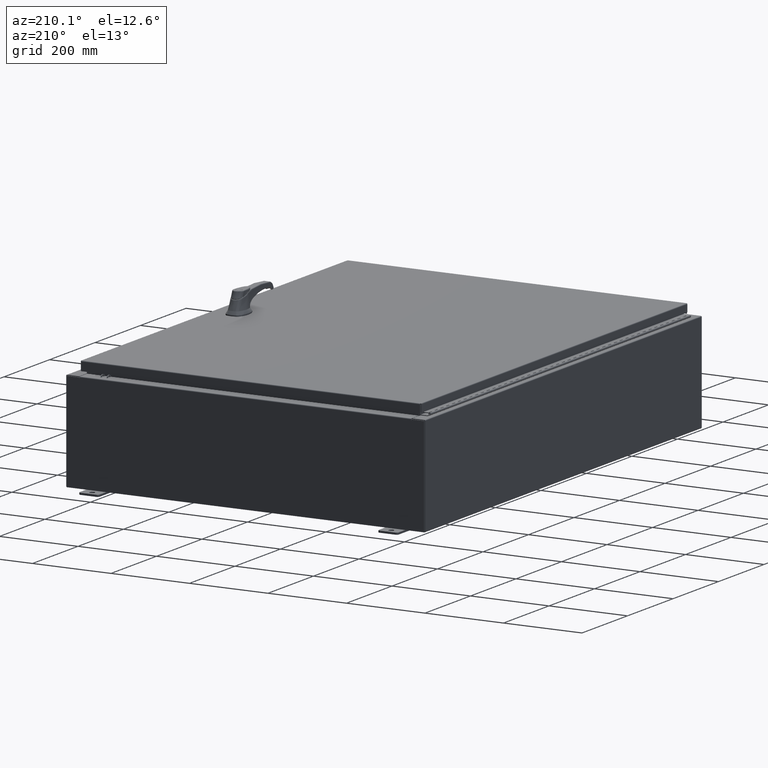
[diagram: clean part render]
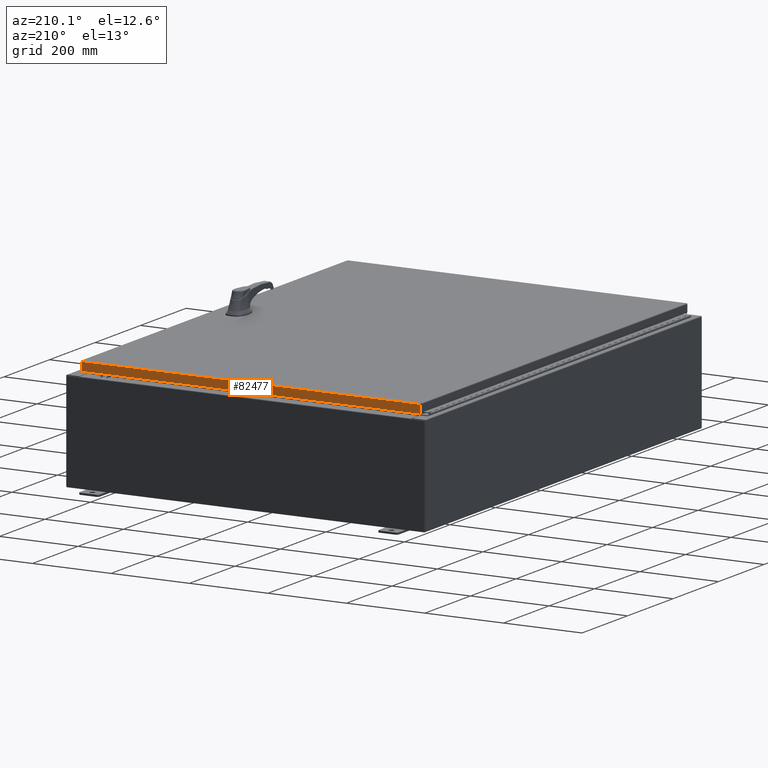
[diagram: same view with one face highlighted and labeled with its STEP entity id]
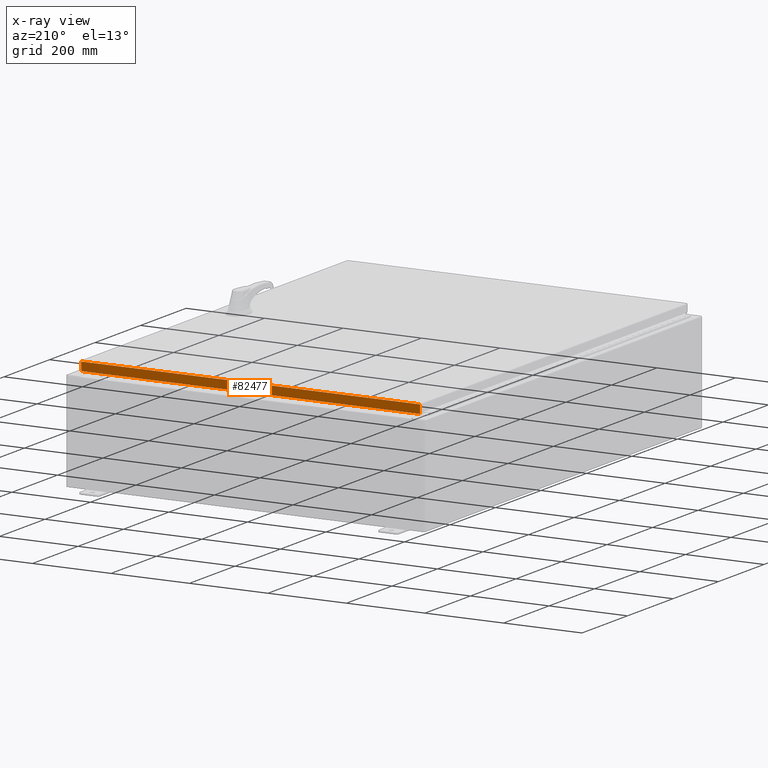
[diagram: x-ray of the same camera — body ghosted, the highlighted face saturated]
A machine part, auxiliary view. The second image highlights one B-rep face of the part: STEP entity #82477.
The next image is the same camera in x-ray: the body ghosted, the highlighted face saturated — about 0% of this face is hidden behind the body in this view.
In plain terms, the highlighted planar face has unit normal (0, -1, -0).
Its self-contained STEP definition (entity closure, byte-faithful):
#4060 = CARTESIAN_POINT ( 'NONE',  ( 16.98915786437627100, 23.09400000000000500, 1.172282251335220500E-013 ) ) ;
#8865 = EDGE_CURVE ( 'NONE', #15075, #90822, #37068, .T. ) ;
#11477 = DIRECTION ( 'NONE',  ( 0.0000000000000000000, 5.064839849203707700E-015, -1.000000000000000000 ) ) ;
#12509 = ORIENTED_EDGE ( 'NONE', *, *, #8865, .F. ) ;
#15075 = VERTEX_POINT ( 'NONE', #36088 ) ;
#21472 = CARTESIAN_POINT ( 'NONE',  ( -1.450060434394706800E-029, 23.09400000000000500, 1.172282251335220500E-013 ) ) ;
#21638 = LINE ( 'NONE', #104977, #128551 ) ;
#23830 = CARTESIAN_POINT ( 'NONE',  ( -17.07799999999999600, 23.09400000000000800, -0.9377000000000040900 ) ) ;
#25221 = ORIENTED_EDGE ( 'NONE', *, *, #57887, .T. ) ;
#29778 = CARTESIAN_POINT ( 'NONE',  ( -17.07799999999999600, 23.09400000000000500, -0.08769999999999550400 ) ) ;
#30270 = CARTESIAN_POINT ( 'NONE',  ( 16.98915786437627100, 23.09400000000000500, -0.08769999999999550400 ) ) ;
#30993 = VECTOR ( 'NONE', #113209, 39.37007874015748100 ) ;
#33377 = ORIENTED_EDGE ( 'NONE', *, *, #134011, .F. ) ;
#33668 = VECTOR ( 'NONE', #35722, 39.37007874015748100 ) ;
#33825 = VECTOR ( 'NONE', #83446, 39.37007874015748100 ) ;
#35722 = DIRECTION ( 'NONE',  ( 0.0000000000000000000, 5.064839849203707700E-015, -1.000000000000000000 ) ) ;
#36088 = CARTESIAN_POINT ( 'NONE',  ( -16.98915786437626400, 23.09400000000000800, -0.9377000000000040900 ) ) ;
#37068 = LINE ( 'NONE', #23830, #33825 ) ;
#42250 = PLANE ( 'NONE',  #118229 ) ;
#43336 = DIRECTION ( 'NONE',  ( -0.0000000000000000000, 5.064839849203707700E-015, -1.000000000000000000 ) ) ;
#45731 = EDGE_LOOP ( 'NONE', ( #33377, #25221, #12509, #46444 ) ) ;
#46444 = ORIENTED_EDGE ( 'NONE', *, *, #103352, .F. ) ;
#56198 = CARTESIAN_POINT ( 'NONE',  ( 16.98915786437627100, 23.09400000000000800, -0.9376999999999997600 ) ) ;
#57887 = EDGE_CURVE ( 'NONE', #110225, #90822, #88892, .T. ) ;
#61363 = VERTEX_POINT ( 'NONE', #109555 ) ;
#73565 = DIRECTION ( 'NONE',  ( 6.278948793603128200E-031, -1.000000000000000000, -5.064839849203707700E-015 ) ) ;
#82477 = ADVANCED_FACE ( 'NONE', ( #107969 ), #42250, .F. ) ;
#83446 = DIRECTION ( 'NONE',  ( 1.000000000000000000, 8.758115402030108600E-047, 1.239713195391617600E-016 ) ) ;
#88892 = LINE ( 'NONE', #4060, #33668 ) ;
#90822 = VERTEX_POINT ( 'NONE', #56198 ) ;
#103352 = EDGE_CURVE ( 'NONE', #61363, #15075, #21638, .T. ) ;
#104977 = CARTESIAN_POINT ( 'NONE',  ( -16.98915786437626400, 23.09400000000000500, -0.07469999999999962800 ) ) ;
#107969 = FACE_OUTER_BOUND ( 'NONE', #45731, .T. ) ;
#109555 = CARTESIAN_POINT ( 'NONE',  ( -16.98915786437626400, 23.09400000000000500, -0.08769999999999550400 ) ) ;
#110225 = VERTEX_POINT ( 'NONE', #30270 ) ;
#113209 = DIRECTION ( 'NONE',  ( -1.000000000000000000, -6.278948793603129100E-031, -3.245122892416731400E-045 ) ) ;
#113732 = LINE ( 'NONE', #29778, #30993 ) ;
#118229 = AXIS2_PLACEMENT_3D ( 'NONE', #21472, #73565, #11477 ) ;
#128551 = VECTOR ( 'NONE', #43336, 39.37007874015748100 ) ;
#134011 = EDGE_CURVE ( 'NONE', #110225, #61363, #113732, .T. ) ;